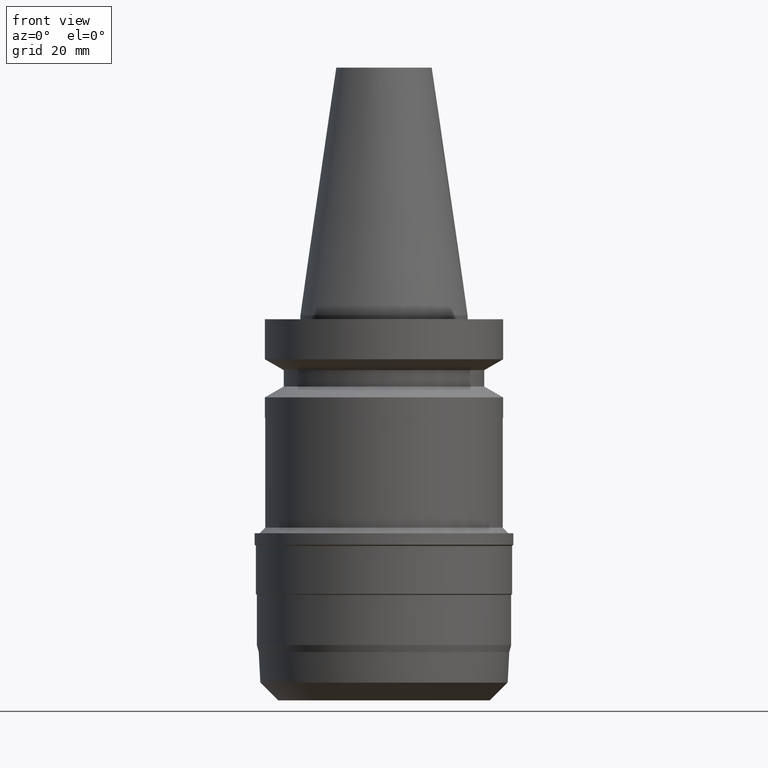
[diagram: clean part render]
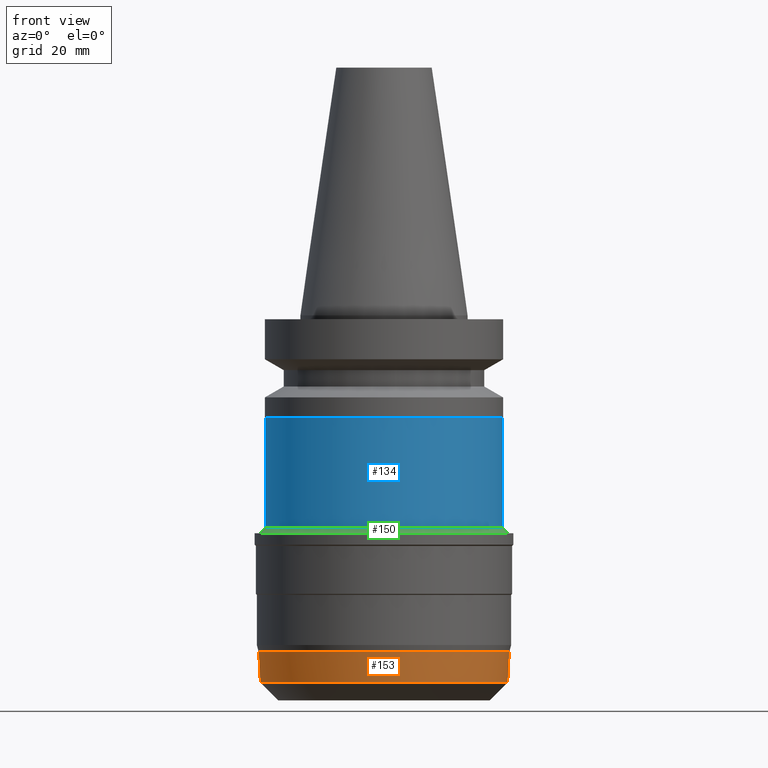
[diagram: same view with three faces highlighted in distinct colors, each labeled with its STEP entity id]
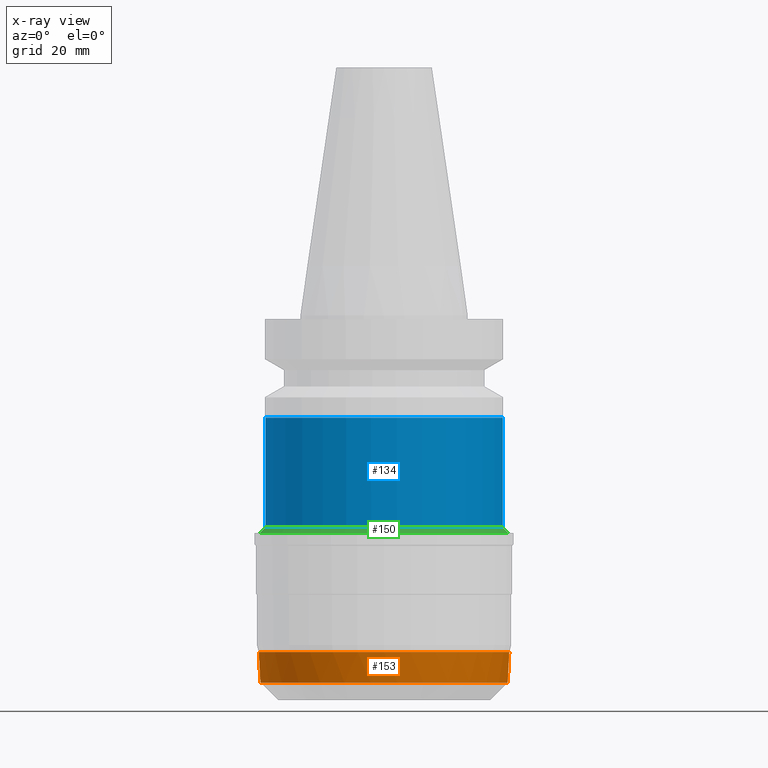
[diagram: x-ray of the same camera — body ghosted, the three highlighted faces saturated]
A machine part, front view with three faces highlighted in distinct colors.
The next image is the same camera in x-ray (body ghosted, the three faces saturated) — at least one of them is partly hidden behind the body in this view.
Their STEP definitions:

[orange] entity #153 — the highlighted conical surface has half-angle 4 deg.
#124=EDGE_CURVE('Unnamed[1]',#282,#282,#283,.T.);
#147=EDGE_CURVE('Unnamed[1]',#319,#319,#320,.T.);
#153=ADVANCED_FACE('Unnamed[1]',(#328,#329),#330,.T.);
#282=VERTEX_POINT('',#484);
#283=CIRCLE('',#485,33.25);
#319=VERTEX_POINT('',#530);
#320=CIRCLE('',#531,32.6873233290342);
#328=FACE_BOUND('',#541,.T.);
#329=FACE_BOUND('',#542,.T.);
#330=CONICAL_SURFACE('',#543,32.9686616645171,0.0698131701744978);
#484=CARTESIAN_POINT('',(5.44147467795287E-015,33.25,-88.8660254));
#485=AXIS2_PLACEMENT_3D('',#688,#689,#690);
#530=CARTESIAN_POINT('',(5.93418996409503E-015,32.6873233290342,-96.9126766709658));
#531=AXIS2_PLACEMENT_3D('',#730,#731,#732);
#541=EDGE_LOOP('',(#740));
#542=EDGE_LOOP('',(#741));
#543=AXIS2_PLACEMENT_3D('',#742,#743,#744);
#688=CARTESIAN_POINT('',(5.44147467795287E-015,1.08829493559057E-014,-88.8660254));
#689=DIRECTION('',(6.12323399573677E-017,1.22464679914738E-016,-1.0));
#690=DIRECTION('',(-1.23259516440783E-032,1.0,1.22464679914738E-016));
#730=CARTESIAN_POINT('',(5.93418996409503E-015,1.18683799281901E-014,-96.9126766709658));
#731=DIRECTION('',(6.12323399573677E-017,1.22464679914732E-016,-1.0));
#732=DIRECTION('',(-1.23259516440801E-032,1.0,1.22464679914732E-016));
#740=ORIENTED_EDGE('',*,*,#147,.F.);
#741=ORIENTED_EDGE('',*,*,#124,.T.);
#742=CARTESIAN_POINT('',(5.68783232102395E-015,1.13756646420479E-014,-92.8893510354829));
#743=DIRECTION('',(-6.12323399573677E-017,-1.22464679914735E-016,1.0));
#744=DIRECTION('',(-1.23259516440792E-032,1.0,1.22464679914735E-016));

[blue] entity #134 — the highlighted cylindrical surface (bore or boss wall) has radius 31.4 mm, axis along (0, 0, -1).
#97=EDGE_CURVE('Unnamed[1]',#240,#240,#241,.T.);
#134=ADVANCED_FACE('Unnamed[1]',(#297,#298),#299,.T.);
#155=EDGE_CURVE('Unnamed[1]',#332,#332,#333,.T.);
#240=VERTEX_POINT('',#431);
#241=CIRCLE('',#432,31.4);
#297=FACE_BOUND('',#503,.T.);
#298=FACE_BOUND('',#504,.T.);
#299=CYLINDRICAL_SURFACE('',#505,31.3999999999999);
#332=VERTEX_POINT('',#546);
#333=CIRCLE('',#547,31.3999999999998);
#431=CARTESIAN_POINT('',(3.42901103761259E-015,31.4,-56.0));
#432=AXIS2_PLACEMENT_3D('',#641,#642,#643);
#503=EDGE_LOOP('',(#704));
#504=EDGE_LOOP('',(#705));
#505=AXIS2_PLACEMENT_3D('',#706,#707,#708);
#546=CARTESIAN_POINT('',(1.65327317884893E-015,31.3999999999998,-27.0));
#547=AXIS2_PLACEMENT_3D('',#745,#746,#747);
#641=CARTESIAN_POINT('',(3.42901103761259E-015,6.85802207522517E-015,-56.0));
#642=DIRECTION('',(6.12323399573677E-017,1.22464679914731E-016,-1.0));
#643=DIRECTION('',(-1.23259516440789E-032,1.0,1.22464679914731E-016));
#704=ORIENTED_EDGE('',*,*,#97,.F.);
#705=ORIENTED_EDGE('',*,*,#155,.T.);
#706=CARTESIAN_POINT('',(2.54114210823076E-015,5.08228421646151E-015,-41.5));
#707=DIRECTION('',(6.12323399573677E-017,1.22464679914731E-016,-1.0));
#708=DIRECTION('',(-1.23259516440789E-032,1.0,1.22464679914731E-016));
#745=CARTESIAN_POINT('',(1.65327317884893E-015,3.30654635769785E-015,-27.0));
#746=DIRECTION('',(6.12323399573677E-017,1.22464679914732E-016,-1.0));
#747=DIRECTION('',(-1.2325951644079E-032,1.0,1.22464679914732E-016));

[green] entity #150 — the highlighted conical surface has half-angle 45 deg.
#77=EDGE_CURVE('Unnamed[1]',#208,#208,#209,.T.);
#97=EDGE_CURVE('Unnamed[1]',#240,#240,#241,.T.);
#150=ADVANCED_FACE('Unnamed[1]',(#323,#324),#325,.T.);
#208=VERTEX_POINT('',#391);
#209=CIRCLE('',#392,32.9);
#240=VERTEX_POINT('',#431);
#241=CIRCLE('',#432,31.4);
#323=FACE_BOUND('',#535,.T.);
#324=FACE_BOUND('',#536,.T.);
#325=CONICAL_SURFACE('',#537,32.15,0.785398163397442);
#391=CARTESIAN_POINT('',(3.52085954754864E-015,32.9,-57.5));
#392=AXIS2_PLACEMENT_3D('',#605,#606,#607);
#431=CARTESIAN_POINT('',(3.42901103761259E-015,31.4,-56.0));
#432=AXIS2_PLACEMENT_3D('',#641,#642,#643);
#535=EDGE_LOOP('',(#734));
#536=EDGE_LOOP('',(#735));
#537=AXIS2_PLACEMENT_3D('',#736,#737,#738);
#605=CARTESIAN_POINT('',(3.52085954754864E-015,7.04171909509728E-015,-57.5));
#606=DIRECTION('',(6.12323399573677E-017,1.22464679914754E-016,-1.0));
#607=DIRECTION('',(-1.23259516440761E-032,1.0,1.22464679914754E-016));
#641=CARTESIAN_POINT('',(3.42901103761259E-015,6.85802207522517E-015,-56.0));
#642=DIRECTION('',(6.12323399573677E-017,1.22464679914731E-016,-1.0));
#643=DIRECTION('',(-1.23259516440789E-032,1.0,1.22464679914731E-016));
#734=ORIENTED_EDGE('',*,*,#77,.F.);
#735=ORIENTED_EDGE('',*,*,#97,.T.);
#736=CARTESIAN_POINT('',(3.47493529258061E-015,6.94987058516122E-015,-56.75));
#737=DIRECTION('',(6.12323399573677E-017,1.22464679914717E-016,-1.0));
#738=DIRECTION('',(-1.23259516440761E-032,1.0,1.22464679914717E-016));